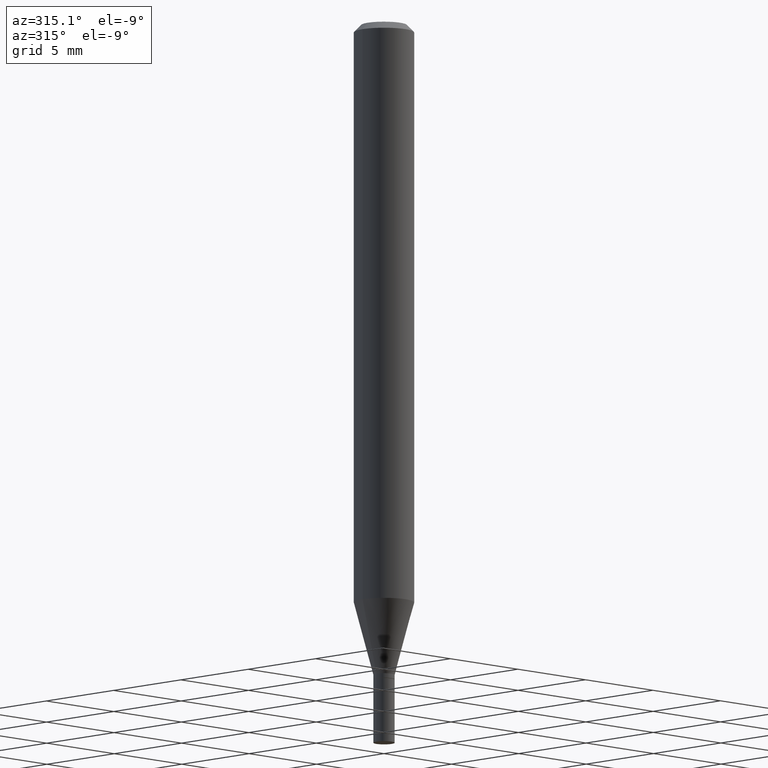
[diagram: clean part render]
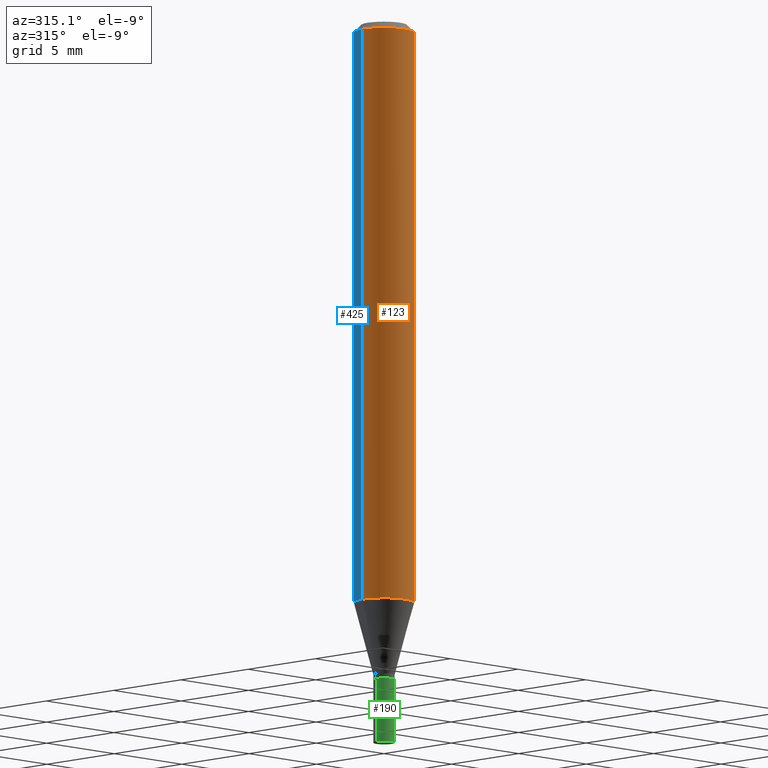
[diagram: same view with three faces highlighted in distinct colors, each labeled with its STEP entity id]
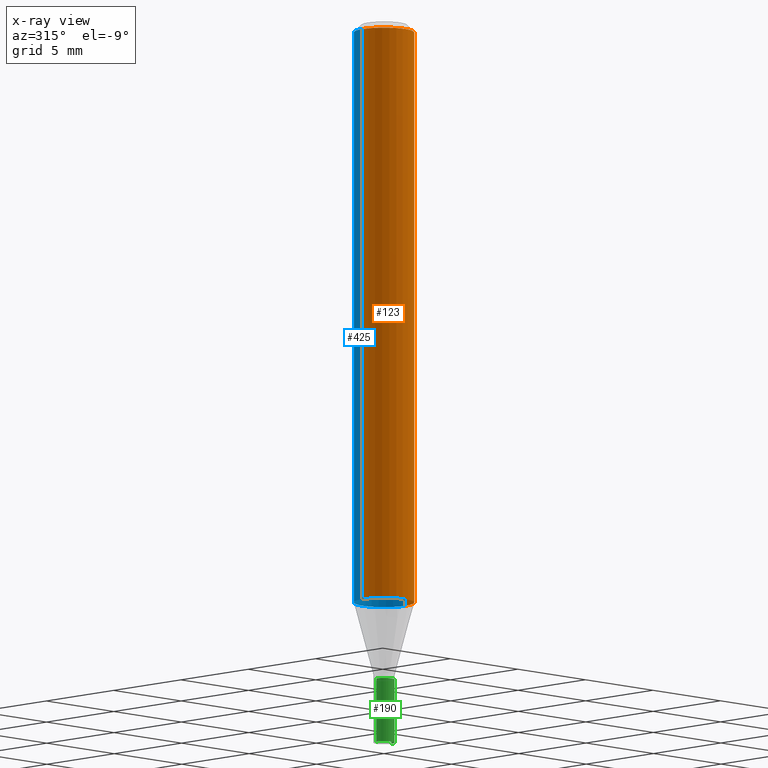
[diagram: x-ray of the same camera — body ghosted, the three highlighted faces saturated]
A machine part, auxiliary view with three faces highlighted in distinct colors.
The next image is the same camera in x-ray (body ghosted, the three faces saturated) — at least one of them is partly hidden behind the body in this view.
Their STEP definitions:

[orange] entity #123 — the highlighted cylindrical surface (edge-blend (fillet) strip) has radius 1.5875 mm, axis along (-0, 0, 1).
#1 = DIRECTION ( 'NONE',  ( 1.000000000000000000, -6.982962677686266711E-15, 4.876176775795935793E-29 ) ) ;
#10 = CARTESIAN_POINT ( 'NONE',  ( 0.06250000000000000000, -4.888073874380388472E-16, -0.01499999999999999944 ) ) ;
#30 = DIRECTION ( 'NONE',  ( 1.000000000000000000, -6.982962677686270655E-15, 0.000000000000000000 ) ) ;
#40 = CYLINDRICAL_SURFACE ( 'NONE', #89, 0.06250000000000000000 ) ;
#41 = EDGE_LOOP ( 'NONE', ( #130, #391, #304, #65 ) ) ;
#59 = VECTOR ( 'NONE', #182, 39.37007874015748143 ) ;
#62 = CARTESIAN_POINT ( 'NONE',  ( -0.06250000000000000000, -3.769611825414159666E-15, -1.206851942293460711 ) ) ;
#65 = ORIENTED_EDGE ( 'NONE', *, *, #112, .F. ) ;
#67 = CARTESIAN_POINT ( 'NONE',  ( 0.000000000000000000, 0.000000000000000000, 0.000000000000000000 ) ) ;
#70 = CIRCLE ( 'NONE', #306, 0.06250000000000000000 ) ;
#89 = AXIS2_PLACEMENT_3D ( 'NONE', #67, #317, #1 ) ;
#93 = LINE ( 'NONE', #171, #119 ) ;
#98 = EDGE_CURVE ( 'NONE', #230, #443, #93, .T. ) ;
#112 = EDGE_CURVE ( 'NONE', #264, #443, #277, .T. ) ;
#119 = VECTOR ( 'NONE', #129, 39.37007874015748143 ) ;
#123 = ADVANCED_FACE ( 'NONE', ( #286 ), #40, .T. ) ;
#129 = DIRECTION ( 'NONE',  ( -2.445468806185136877E-29, 3.491481338843145188E-15, 1.000000000000000000 ) ) ;
#130 = ORIENTED_EDGE ( 'NONE', *, *, #183, .F. ) ;
#132 = CARTESIAN_POINT ( 'NONE',  ( 3.668203209277705088E-31, -5.237222008264718399E-17, -0.01499999999999999944 ) ) ;
#148 = LINE ( 'NONE', #400, #59 ) ;
#171 = CARTESIAN_POINT ( 'NONE',  ( 0.06250000000000000000, -4.364351673553916694E-16, 3.047610484872459871E-30 ) ) ;
#180 = DIRECTION ( 'NONE',  ( 1.000000000000000000, -6.982962677686266711E-15, 0.000000000000000000 ) ) ;
#182 = DIRECTION ( 'NONE',  ( -2.445468806185136877E-29, 3.491481338843145188E-15, 1.000000000000000000 ) ) ;
#183 = EDGE_CURVE ( 'NONE', #386, #264, #148, .T. ) ;
#208 = CARTESIAN_POINT ( 'NONE',  ( 2.951318778562602676E-29, -4.213701035264222282E-15, -1.206851942293460711 ) ) ;
#230 = VERTEX_POINT ( 'NONE', #331 ) ;
#248 = AXIS2_PLACEMENT_3D ( 'NONE', #132, #320, #180 ) ;
#264 = VERTEX_POINT ( 'NONE', #408 ) ;
#277 = CIRCLE ( 'NONE', #248, 0.06250000000000000000 ) ;
#286 = FACE_OUTER_BOUND ( 'NONE', #41, .T. ) ;
#304 = ORIENTED_EDGE ( 'NONE', *, *, #98, .T. ) ;
#306 = AXIS2_PLACEMENT_3D ( 'NONE', #208, #344, #30 ) ;
#317 = DIRECTION ( 'NONE',  ( -2.445468806185136597E-29, 3.491481338843145583E-15, 1.000000000000000000 ) ) ;
#320 = DIRECTION ( 'NONE',  ( -2.445468806185136597E-29, 3.491481338843145583E-15, 1.000000000000000000 ) ) ;
#331 = CARTESIAN_POINT ( 'NONE',  ( 0.06250000000000000000, -4.650136202619614741E-15, -1.206851942293460711 ) ) ;
#344 = DIRECTION ( 'NONE',  ( -2.445468806185136597E-29, 3.491481338843145583E-15, 1.000000000000000000 ) ) ;
#386 = VERTEX_POINT ( 'NONE', #62 ) ;
#391 = ORIENTED_EDGE ( 'NONE', *, *, #398, .T. ) ;
#398 = EDGE_CURVE ( 'NONE', #386, #230, #70, .T. ) ;
#400 = CARTESIAN_POINT ( 'NONE',  ( -0.06250000000000000000, 4.440892098500626162E-16, -3.074334431409316114E-30 ) ) ;
#408 = CARTESIAN_POINT ( 'NONE',  ( -0.06250000000000000000, -1.688947417823372262E-15, -0.01499999999999999944 ) ) ;
#443 = VERTEX_POINT ( 'NONE', #10 ) ;

[blue] entity #425 — the highlighted cylindrical surface (edge-blend (fillet) strip) has radius 1.5875 mm, axis along (-0, 0, 1).
#10 = CARTESIAN_POINT ( 'NONE',  ( 0.06250000000000000000, -4.888073874380388472E-16, -0.01499999999999999944 ) ) ;
#50 = FACE_OUTER_BOUND ( 'NONE', #410, .T. ) ;
#52 = ORIENTED_EDGE ( 'NONE', *, *, #183, .T. ) ;
#59 = VECTOR ( 'NONE', #182, 39.37007874015748143 ) ;
#62 = CARTESIAN_POINT ( 'NONE',  ( -0.06250000000000000000, -3.769611825414159666E-15, -1.206851942293460711 ) ) ;
#83 = ORIENTED_EDGE ( 'NONE', *, *, #98, .F. ) ;
#93 = LINE ( 'NONE', #171, #119 ) ;
#98 = EDGE_CURVE ( 'NONE', #230, #443, #93, .T. ) ;
#119 = VECTOR ( 'NONE', #129, 39.37007874015748143 ) ;
#129 = DIRECTION ( 'NONE',  ( -2.445468806185136877E-29, 3.491481338843145188E-15, 1.000000000000000000 ) ) ;
#148 = LINE ( 'NONE', #400, #59 ) ;
#171 = CARTESIAN_POINT ( 'NONE',  ( 0.06250000000000000000, -4.364351673553916694E-16, 3.047610484872459871E-30 ) ) ;
#177 = CARTESIAN_POINT ( 'NONE',  ( 3.668203209277705088E-31, -5.237222008264718399E-17, -0.01499999999999999944 ) ) ;
#182 = DIRECTION ( 'NONE',  ( -2.445468806185136877E-29, 3.491481338843145188E-15, 1.000000000000000000 ) ) ;
#183 = EDGE_CURVE ( 'NONE', #386, #264, #148, .T. ) ;
#185 = CIRCLE ( 'NONE', #363, 0.06250000000000000000 ) ;
#193 = CIRCLE ( 'NONE', #301, 0.06250000000000000000 ) ;
#203 = AXIS2_PLACEMENT_3D ( 'NONE', #361, #253, #445 ) ;
#223 = CYLINDRICAL_SURFACE ( 'NONE', #203, 0.06250000000000000000 ) ;
#227 = EDGE_CURVE ( 'NONE', #230, #386, #185, .T. ) ;
#230 = VERTEX_POINT ( 'NONE', #331 ) ;
#253 = DIRECTION ( 'NONE',  ( -2.445468806185136597E-29, 3.491481338843145583E-15, 1.000000000000000000 ) ) ;
#259 = DIRECTION ( 'NONE',  ( 1.000000000000000000, -6.982962677686270655E-15, 0.000000000000000000 ) ) ;
#264 = VERTEX_POINT ( 'NONE', #408 ) ;
#279 = DIRECTION ( 'NONE',  ( 1.000000000000000000, -6.982962677686266711E-15, 0.000000000000000000 ) ) ;
#301 = AXIS2_PLACEMENT_3D ( 'NONE', #177, #318, #279 ) ;
#309 = EDGE_CURVE ( 'NONE', #443, #264, #193, .T. ) ;
#318 = DIRECTION ( 'NONE',  ( -2.445468806185136597E-29, 3.491481338843145583E-15, 1.000000000000000000 ) ) ;
#331 = CARTESIAN_POINT ( 'NONE',  ( 0.06250000000000000000, -4.650136202619614741E-15, -1.206851942293460711 ) ) ;
#361 = CARTESIAN_POINT ( 'NONE',  ( 0.000000000000000000, 0.000000000000000000, 0.000000000000000000 ) ) ;
#363 = AXIS2_PLACEMENT_3D ( 'NONE', #384, #392, #259 ) ;
#384 = CARTESIAN_POINT ( 'NONE',  ( 2.951318778562602676E-29, -4.213701035264222282E-15, -1.206851942293460711 ) ) ;
#386 = VERTEX_POINT ( 'NONE', #62 ) ;
#392 = DIRECTION ( 'NONE',  ( -2.445468806185136597E-29, 3.491481338843145583E-15, 1.000000000000000000 ) ) ;
#400 = CARTESIAN_POINT ( 'NONE',  ( -0.06250000000000000000, 4.440892098500626162E-16, -3.074334431409316114E-30 ) ) ;
#408 = CARTESIAN_POINT ( 'NONE',  ( -0.06250000000000000000, -1.688947417823372262E-15, -0.01499999999999999944 ) ) ;
#410 = EDGE_LOOP ( 'NONE', ( #412, #52, #423, #83 ) ) ;
#412 = ORIENTED_EDGE ( 'NONE', *, *, #227, .T. ) ;
#423 = ORIENTED_EDGE ( 'NONE', *, *, #309, .F. ) ;
#425 = ADVANCED_FACE ( 'NONE', ( #50 ), #223, .T. ) ;
#443 = VERTEX_POINT ( 'NONE', #10 ) ;
#445 = DIRECTION ( 'NONE',  ( 1.000000000000000000, -6.982962677686266711E-15, 4.876176775795935793E-29 ) ) ;

[green] entity #190 — the highlighted cylindrical surface (edge-blend (fillet) strip) has radius 0.5588 mm, axis along (-0, 0, 1).
#16 = AXIS2_PLACEMENT_3D ( 'NONE', #71, #222, #46 ) ;
#17 = ORIENTED_EDGE ( 'NONE', *, *, #179, .T. ) ;
#46 = DIRECTION ( 'NONE',  ( 1.000000000000000000, -6.982962677686245411E-15, 0.000000000000000000 ) ) ;
#71 = CARTESIAN_POINT ( 'NONE',  ( 3.345401326861266963E-29, -4.776346471537423880E-15, -1.368000000000000105 ) ) ;
#86 = DIRECTION ( 'NONE',  ( 1.000000000000000000, -6.982962677686265922E-15, 4.876176775795936353E-29 ) ) ;
#94 = AXIS2_PLACEMENT_3D ( 'NONE', #252, #117, #86 ) ;
#105 = VERTEX_POINT ( 'NONE', #345 ) ;
#117 = DIRECTION ( 'NONE',  ( -2.445468806185136597E-29, 3.491481338843145583E-15, 1.000000000000000000 ) ) ;
#124 = VECTOR ( 'NONE', #435, 39.37007874015748143 ) ;
#140 = ORIENTED_EDGE ( 'NONE', *, *, #145, .T. ) ;
#145 = EDGE_CURVE ( 'NONE', #402, #195, #178, .T. ) ;
#149 = VECTOR ( 'NONE', #357, 39.37007874015748143 ) ;
#151 = FACE_OUTER_BOUND ( 'NONE', #355, .T. ) ;
#176 = EDGE_CURVE ( 'NONE', #294, #195, #255, .T. ) ;
#178 = LINE ( 'NONE', #431, #124 ) ;
#179 = EDGE_CURVE ( 'NONE', #105, #402, #448, .T. ) ;
#187 = DIRECTION ( 'NONE',  ( 1.000000000000000000, -6.982962677686245411E-15, 0.000000000000000000 ) ) ;
#190 = ADVANCED_FACE ( 'NONE', ( #151 ), #216, .T. ) ;
#195 = VERTEX_POINT ( 'NONE', #269 ) ;
#202 = CARTESIAN_POINT ( 'NONE',  ( -0.02199999999999999872, -4.850464838033848848E-15, -1.368000000000000105 ) ) ;
#216 = CYLINDRICAL_SURFACE ( 'NONE', #94, 0.02199999999999999872 ) ;
#222 = DIRECTION ( 'NONE',  ( -2.445468806185136597E-29, 3.491481338843145583E-15, 1.000000000000000000 ) ) ;
#252 = CARTESIAN_POINT ( 'NONE',  ( 0.000000000000000000, 0.000000000000000000, 0.000000000000000000 ) ) ;
#255 = CIRCLE ( 'NONE', #16, 0.02199999999999999872 ) ;
#269 = CARTESIAN_POINT ( 'NONE',  ( 0.02199999999999999872, -4.929971650446520927E-15, -1.368000000000000105 ) ) ;
#294 = VERTEX_POINT ( 'NONE', #202 ) ;
#296 = DIRECTION ( 'NONE',  ( -2.445468806185136597E-29, 3.491481338843145583E-15, 1.000000000000000000 ) ) ;
#298 = LINE ( 'NONE', #365, #149 ) ;
#329 = ORIENTED_EDGE ( 'NONE', *, *, #430, .F. ) ;
#342 = AXIS2_PLACEMENT_3D ( 'NONE', #353, #296, #187 ) ;
#345 = CARTESIAN_POINT ( 'NONE',  ( -0.02199999999999999872, -4.850464838033848848E-15, -1.500000000000000222 ) ) ;
#353 = CARTESIAN_POINT ( 'NONE',  ( 3.668203209277704895E-29, -5.237222008264718177E-15, -1.500000000000000222 ) ) ;
#355 = EDGE_LOOP ( 'NONE', ( #329, #17, #140, #447 ) ) ;
#357 = DIRECTION ( 'NONE',  ( -2.445468806185136877E-29, 3.491481338843145188E-15, 1.000000000000000000 ) ) ;
#365 = CARTESIAN_POINT ( 'NONE',  ( -0.02199999999999999872, 1.563194018672220318E-16, -1.082165719856079240E-30 ) ) ;
#402 = VERTEX_POINT ( 'NONE', #463 ) ;
#430 = EDGE_CURVE ( 'NONE', #105, #294, #298, .T. ) ;
#431 = CARTESIAN_POINT ( 'NONE',  ( 0.02199999999999999872, -1.536251789090978361E-16, 1.072758890675105930E-30 ) ) ;
#435 = DIRECTION ( 'NONE',  ( -2.445468806185136877E-29, 3.491481338843145188E-15, 1.000000000000000000 ) ) ;
#447 = ORIENTED_EDGE ( 'NONE', *, *, #176, .F. ) ;
#448 = CIRCLE ( 'NONE', #342, 0.02199999999999999872 ) ;
#463 = CARTESIAN_POINT ( 'NONE',  ( 0.02199999999999999872, -5.390847187173816013E-15, -1.500000000000000222 ) ) ;